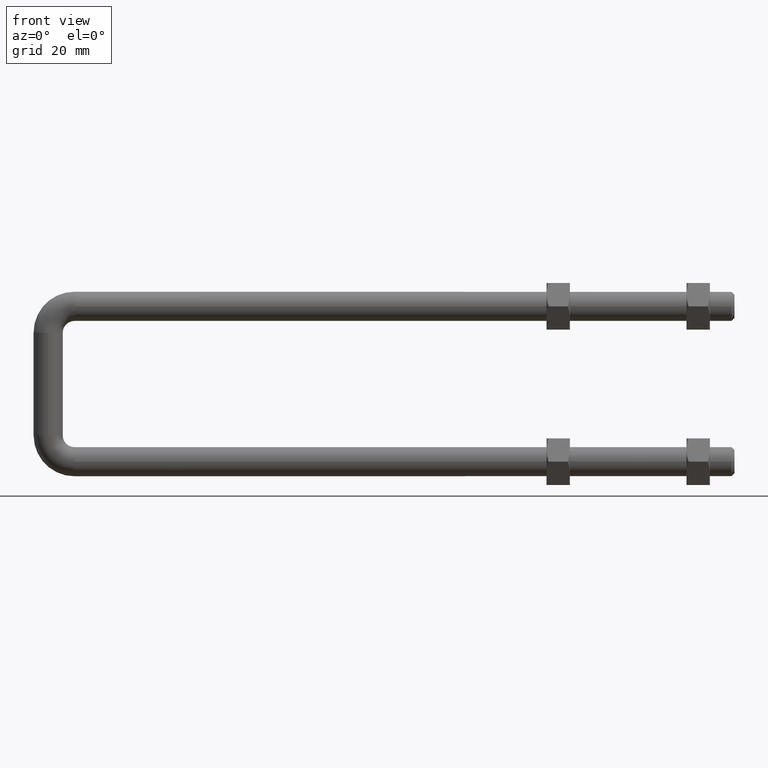
[diagram: clean part render]
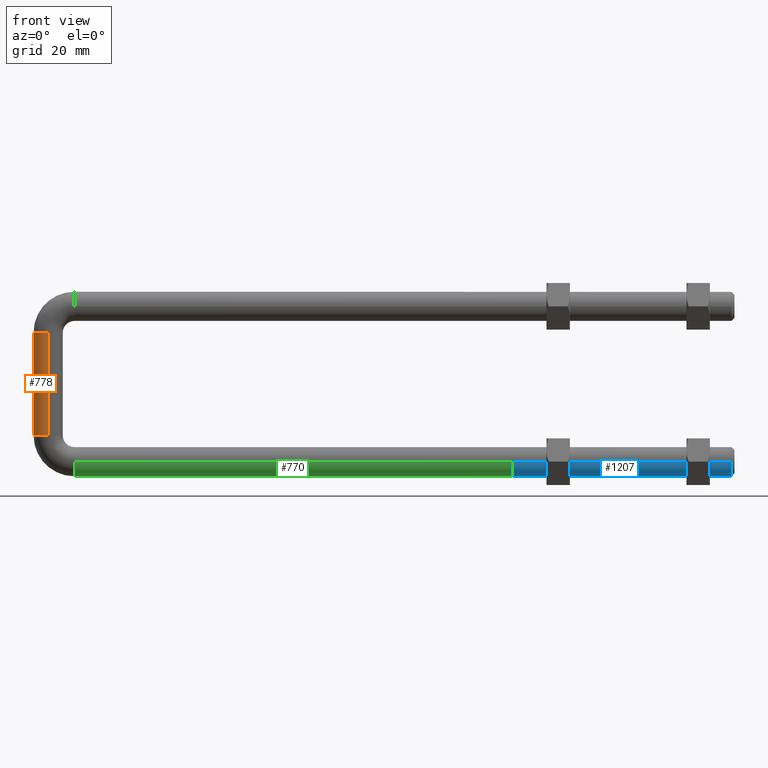
[diagram: same view with three faces highlighted in distinct colors, each labeled with its STEP entity id]
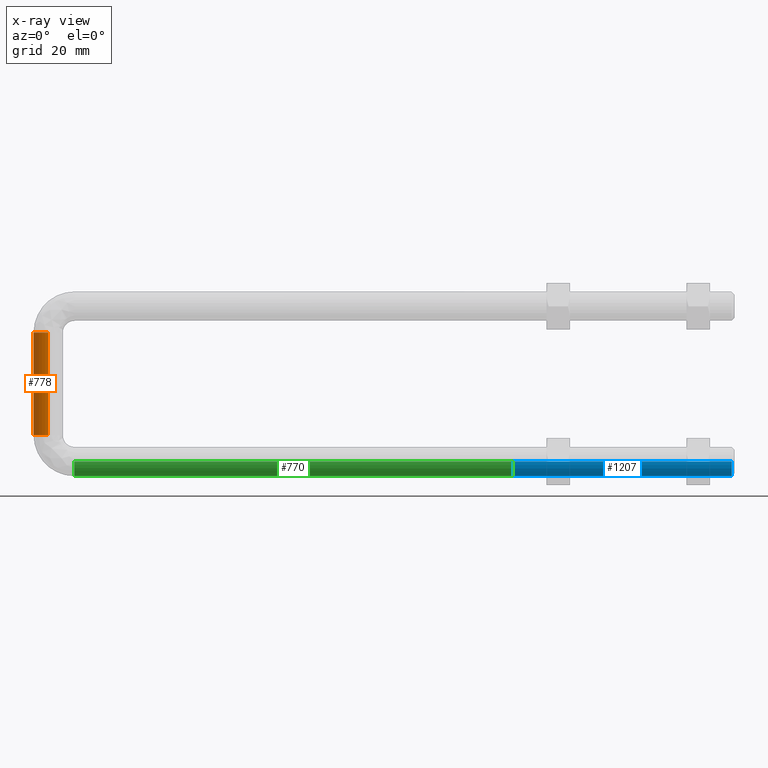
[diagram: x-ray of the same camera — body ghosted, the three highlighted faces saturated]
A machine part, front view with three faces highlighted in distinct colors.
The next image is the same camera in x-ray (body ghosted, the three faces saturated) — at least one of them is partly hidden behind the body in this view.
Their STEP definitions:

[orange] entity #778 — the highlighted cylindrical surface (edge-blend (fillet) strip) has radius 2.5 mm, axis along (0, 0, -1).
#7 = LINE ( 'NONE', #525, #967 ) ;
#21 = EDGE_CURVE ( 'NONE', #494, #1269, #923, .T. ) ;
#94 = FACE_OUTER_BOUND ( 'NONE', #1497, .T. ) ;
#111 = AXIS2_PLACEMENT_3D ( 'NONE', #614, #1482, #1296 ) ;
#139 = AXIS2_PLACEMENT_3D ( 'NONE', #195, #209, #183 ) ;
#183 = DIRECTION ( 'NONE',  ( 1.000000000000000000, 0.0000000000000000000, 0.0000000000000000000 ) ) ;
#195 = CARTESIAN_POINT ( 'NONE',  ( -85.00000000000015600, -22.10000000000000100, -2.311115933264683000E-030 ) ) ;
#209 = DIRECTION ( 'NONE',  ( 0.0000000000000000000, -1.000000000000000000, 0.0000000000000000000 ) ) ;
#225 = EDGE_CURVE ( 'NONE', #1269, #1194, #1354, .T. ) ;
#262 = VERTEX_POINT ( 'NONE', #1443 ) ;
#283 = CIRCLE ( 'NONE', #542, 2.500000000000008000 ) ;
#295 = DIRECTION ( 'NONE',  ( 0.0000000000000000000, -1.000000000000000000, 0.0000000000000000000 ) ) ;
#317 = CARTESIAN_POINT ( 'NONE',  ( -85.00000000000015600, -4.500000000000000900, -2.500000000000002200 ) ) ;
#321 = CARTESIAN_POINT ( 'NONE',  ( -87.49999999995600300, -22.10000000000000100, -1.269515858625958200E-010 ) ) ;
#326 = DIRECTION ( 'NONE',  ( 0.0000000000000000000, 0.0000000000000000000, -1.000000000000000000 ) ) ;
#412 = CARTESIAN_POINT ( 'NONE',  ( -85.00000000000015600, -4.500000000000000900, 2.500000000000008000 ) ) ;
#420 = VERTEX_POINT ( 'NONE', #1467 ) ;
#494 = VERTEX_POINT ( 'NONE', #839 ) ;
#508 = DIRECTION ( 'NONE',  ( 0.0000000000000000000, -1.000000000000000000, 0.0000000000000000000 ) ) ;
#525 = CARTESIAN_POINT ( 'NONE',  ( -85.00000000000015600, -4.500000000000000900, -2.500000000000008000 ) ) ;
#527 = VECTOR ( 'NONE', #781, 1000.000000000000000 ) ;
#535 = DIRECTION ( 'NONE',  ( 1.000000000000000000, 0.0000000000000000000, 0.0000000000000000000 ) ) ;
#542 = AXIS2_PLACEMENT_3D ( 'NONE', #1637, #699, #691 ) ;
#574 = CARTESIAN_POINT ( 'NONE',  ( -85.00000000000015600, -22.10000000000000100, -2.311115933264683000E-030 ) ) ;
#614 = CARTESIAN_POINT ( 'NONE',  ( -85.00000000000015600, -4.500000000000000900, -2.311115933264683000E-030 ) ) ;
#618 = CARTESIAN_POINT ( 'NONE',  ( -85.00000000000015600, -4.500000000000000900, -2.311115933264683000E-030 ) ) ;
#691 = DIRECTION ( 'NONE',  ( 0.0000000000000000000, 0.0000000000000000000, -1.000000000000000000 ) ) ;
#699 = DIRECTION ( 'NONE',  ( -0.0000000000000000000, 1.000000000000000000, -0.0000000000000000000 ) ) ;
#744 = EDGE_CURVE ( 'NONE', #865, #420, #1213, .T. ) ;
#778 = ADVANCED_FACE ( 'NONE', ( #94 ), #1184, .T. ) ;
#781 = DIRECTION ( 'NONE',  ( 0.0000000000000000000, -1.000000000000000000, 0.0000000000000000000 ) ) ;
#839 = CARTESIAN_POINT ( 'NONE',  ( -85.00000000000015600, -4.500000000000000900, 2.500000000000002200 ) ) ;
#865 = VERTEX_POINT ( 'NONE', #317 ) ;
#923 = LINE ( 'NONE', #412, #527 ) ;
#967 = VECTOR ( 'NONE', #976, 1000.000000000000000 ) ;
#976 = DIRECTION ( 'NONE',  ( 0.0000000000000000000, -1.000000000000000000, 0.0000000000000000000 ) ) ;
#988 = EDGE_CURVE ( 'NONE', #1194, #262, #1344, .T. ) ;
#1063 = AXIS2_PLACEMENT_3D ( 'NONE', #574, #508, #535 ) ;
#1184 = CYLINDRICAL_SURFACE ( 'NONE', #1505, 2.500000000000008000 ) ;
#1194 = VERTEX_POINT ( 'NONE', #321 ) ;
#1203 = EDGE_CURVE ( 'NONE', #420, #494, #283, .T. ) ;
#1213 = CIRCLE ( 'NONE', #111, 2.500000000000008000 ) ;
#1251 = EDGE_CURVE ( 'NONE', #865, #262, #7, .T. ) ;
#1252 = ORIENTED_EDGE ( 'NONE', *, *, #225, .F. ) ;
#1269 = VERTEX_POINT ( 'NONE', #1522 ) ;
#1296 = DIRECTION ( 'NONE',  ( 0.0000000000000000000, 0.0000000000000000000, -1.000000000000000000 ) ) ;
#1315 = ORIENTED_EDGE ( 'NONE', *, *, #744, .F. ) ;
#1332 = ORIENTED_EDGE ( 'NONE', *, *, #1251, .T. ) ;
#1344 = CIRCLE ( 'NONE', #1063, 2.500000000000002200 ) ;
#1354 = CIRCLE ( 'NONE', #139, 2.500000000000002200 ) ;
#1443 = CARTESIAN_POINT ( 'NONE',  ( -85.00000000000015600, -22.10000000000000100, -2.500000000000008000 ) ) ;
#1467 = CARTESIAN_POINT ( 'NONE',  ( -87.50000000000015600, -4.499999999999976000, 7.716141121096912600E-010 ) ) ;
#1482 = DIRECTION ( 'NONE',  ( -0.0000000000000000000, 1.000000000000000000, -0.0000000000000000000 ) ) ;
#1497 = EDGE_LOOP ( 'NONE', ( #1680, #1634, #1315, #1332, #1706, #1252 ) ) ;
#1505 = AXIS2_PLACEMENT_3D ( 'NONE', #618, #295, #326 ) ;
#1522 = CARTESIAN_POINT ( 'NONE',  ( -85.00000000000015600, -22.10000000000000100, 2.500000000000008000 ) ) ;
#1634 = ORIENTED_EDGE ( 'NONE', *, *, #1203, .F. ) ;
#1637 = CARTESIAN_POINT ( 'NONE',  ( -85.00000000000015600, -4.500000000000000900, -2.311115933264683000E-030 ) ) ;
#1680 = ORIENTED_EDGE ( 'NONE', *, *, #21, .F. ) ;
#1706 = ORIENTED_EDGE ( 'NONE', *, *, #988, .F. ) ;

[blue] entity #1207 — the highlighted cylindrical surface (edge-blend (fillet) strip) has radius 2.5 mm, axis along (-1, 0, 0).
#22 = DIRECTION ( 'NONE',  ( -1.000000000000000000, -0.0000000000000000000, -1.214306433183767400E-016 ) ) ;
#57 = CARTESIAN_POINT ( 'NONE',  ( -5.500000000000143900, -26.60000000000000500, -2.499999999999999100 ) ) ;
#93 = ORIENTED_EDGE ( 'NONE', *, *, #1093, .F. ) ;
#245 = AXIS2_PLACEMENT_3D ( 'NONE', #1456, #256, #344 ) ;
#256 = DIRECTION ( 'NONE',  ( -1.000000000000000000, 1.138085446107915500E-016, -1.214306433183764700E-016 ) ) ;
#344 = DIRECTION ( 'NONE',  ( 0.0000000000000000000, 0.0000000000000000000, 1.000000000000000000 ) ) ;
#372 = FACE_OUTER_BOUND ( 'NONE', #1431, .T. ) ;
#410 = CARTESIAN_POINT ( 'NONE',  ( -5.500000000000143900, -26.60000000000000100, -1.540743955509788700E-030 ) ) ;
#430 = CARTESIAN_POINT ( 'NONE',  ( -5.500000000000143900, -26.60000000000000500, 2.499999999999998700 ) ) ;
#433 = VECTOR ( 'NONE', #763, 1000.000000000000000 ) ;
#449 = EDGE_CURVE ( 'NONE', #1144, #539, #966, .T. ) ;
#465 = LINE ( 'NONE', #622, #1140 ) ;
#532 = ORIENTED_EDGE ( 'NONE', *, *, #765, .T. ) ;
#539 = VERTEX_POINT ( 'NONE', #57 ) ;
#622 = CARTESIAN_POINT ( 'NONE',  ( 32.49999999999986500, -26.60000000000000500, -2.499999999999995100 ) ) ;
#750 = DIRECTION ( 'NONE',  ( -1.000000000000000000, 1.138085446107915500E-016, -1.214306433183764700E-016 ) ) ;
#763 = DIRECTION ( 'NONE',  ( -1.000000000000000000, 1.138085446107915500E-016, -1.214306433183764700E-016 ) ) ;
#765 = EDGE_CURVE ( 'NONE', #1130, #1144, #969, .T. ) ;
#830 = CARTESIAN_POINT ( 'NONE',  ( 31.99999999999984700, -26.60000000000000500, -2.499999999999994200 ) ) ;
#863 = EDGE_CURVE ( 'NONE', #1303, #1130, #1623, .T. ) ;
#939 = CARTESIAN_POINT ( 'NONE',  ( 31.99999999999984700, -26.60000000000000500, 4.553649124439115500E-015 ) ) ;
#966 = CIRCLE ( 'NONE', #1389, 2.500000000000000000 ) ;
#969 = LINE ( 'NONE', #1151, #433 ) ;
#1030 = DIRECTION ( 'NONE',  ( 1.000000000000000000, -1.138085446107915500E-016, 1.214306433183764700E-016 ) ) ;
#1093 = EDGE_CURVE ( 'NONE', #1303, #539, #465, .T. ) ;
#1130 = VERTEX_POINT ( 'NONE', #1639 ) ;
#1140 = VECTOR ( 'NONE', #750, 1000.000000000000000 ) ;
#1144 = VERTEX_POINT ( 'NONE', #430 ) ;
#1151 = CARTESIAN_POINT ( 'NONE',  ( 32.49999999999986500, -26.60000000000000500, 2.500000000000004900 ) ) ;
#1164 = ORIENTED_EDGE ( 'NONE', *, *, #449, .T. ) ;
#1207 = ADVANCED_FACE ( 'NONE', ( #372 ), #1679, .T. ) ;
#1303 = VERTEX_POINT ( 'NONE', #830 ) ;
#1370 = ORIENTED_EDGE ( 'NONE', *, *, #863, .T. ) ;
#1389 = AXIS2_PLACEMENT_3D ( 'NONE', #410, #1030, #1662 ) ;
#1431 = EDGE_LOOP ( 'NONE', ( #93, #1370, #532, #1164 ) ) ;
#1456 = CARTESIAN_POINT ( 'NONE',  ( 32.49999999999986500, -26.60000000000000500, 4.614364446098306900E-015 ) ) ;
#1559 = DIRECTION ( 'NONE',  ( 0.0000000000000000000, 0.0000000000000000000, -1.000000000000000000 ) ) ;
#1623 = CIRCLE ( 'NONE', #1693, 2.500000000000000000 ) ;
#1639 = CARTESIAN_POINT ( 'NONE',  ( 31.99999999999984700, -26.60000000000000500, 2.500000000000003600 ) ) ;
#1662 = DIRECTION ( 'NONE',  ( 0.0000000000000000000, 0.0000000000000000000, -1.000000000000000000 ) ) ;
#1679 = CYLINDRICAL_SURFACE ( 'NONE', #245, 2.500000000000000000 ) ;
#1693 = AXIS2_PLACEMENT_3D ( 'NONE', #939, #22, #1559 ) ;

[green] entity #770 — the highlighted cylindrical surface (edge-blend (fillet) strip) has radius 2.5 mm, axis along (1, 0, 0).
#4 = DIRECTION ( 'NONE',  ( 1.000000000000000000, 0.0000000000000000000, 0.0000000000000000000 ) ) ;
#83 = AXIS2_PLACEMENT_3D ( 'NONE', #299, #390, #819 ) ;
#95 = EDGE_CURVE ( 'NONE', #1691, #1253, #881, .T. ) ;
#122 = VECTOR ( 'NONE', #4, 1000.000000000000000 ) ;
#220 = CARTESIAN_POINT ( 'NONE',  ( -80.50000000000015600, -26.60000000000000100, 2.500000000000004400 ) ) ;
#265 = VERTEX_POINT ( 'NONE', #455 ) ;
#299 = CARTESIAN_POINT ( 'NONE',  ( -80.50000000000015600, -26.60000000000000100, -2.311115933264683000E-030 ) ) ;
#311 = LINE ( 'NONE', #1139, #122 ) ;
#318 = CIRCLE ( 'NONE', #451, 2.500000000000004400 ) ;
#361 = ORIENTED_EDGE ( 'NONE', *, *, #1415, .T. ) ;
#390 = DIRECTION ( 'NONE',  ( -1.000000000000000000, -0.0000000000000000000, -0.0000000000000000000 ) ) ;
#393 = CARTESIAN_POINT ( 'NONE',  ( -5.500000000000143900, -26.60000000000000100, 2.499999999999998700 ) ) ;
#403 = ORIENTED_EDGE ( 'NONE', *, *, #95, .F. ) ;
#405 = VERTEX_POINT ( 'NONE', #393 ) ;
#451 = AXIS2_PLACEMENT_3D ( 'NONE', #453, #1088, #943 ) ;
#453 = CARTESIAN_POINT ( 'NONE',  ( -80.50000000000015600, -26.60000000000000100, -2.311115933264683000E-030 ) ) ;
#455 = CARTESIAN_POINT ( 'NONE',  ( -80.50000000000015600, -26.60000000000000100, -2.499999999999998700 ) ) ;
#479 = FACE_OUTER_BOUND ( 'NONE', #521, .T. ) ;
#521 = EDGE_LOOP ( 'NONE', ( #1257, #403, #1049, #361, #630 ) ) ;
#580 = LINE ( 'NONE', #220, #874 ) ;
#630 = ORIENTED_EDGE ( 'NONE', *, *, #1334, .F. ) ;
#670 = CARTESIAN_POINT ( 'NONE',  ( -80.50000000000015600, -26.60000000000000100, 2.499999999999998700 ) ) ;
#770 = ADVANCED_FACE ( 'NONE', ( #479 ), #1236, .T. ) ;
#772 = CARTESIAN_POINT ( 'NONE',  ( -5.500000000000143900, -26.60000000000000100, -1.540743955509788700E-030 ) ) ;
#819 = DIRECTION ( 'NONE',  ( 0.0000000000000000000, 1.387778780781443300E-015, -1.000000000000000000 ) ) ;
#869 = AXIS2_PLACEMENT_3D ( 'NONE', #772, #1173, #1170 ) ;
#874 = VECTOR ( 'NONE', #1178, 1000.000000000000000 ) ;
#880 = CARTESIAN_POINT ( 'NONE',  ( -80.50000000000015600, -26.60000000000000100, -2.311115933264683000E-030 ) ) ;
#881 = CIRCLE ( 'NONE', #83, 2.500000000000004400 ) ;
#917 = CARTESIAN_POINT ( 'NONE',  ( -5.500000000000143900, -26.60000000000000100, -2.500000000000000000 ) ) ;
#941 = CARTESIAN_POINT ( 'NONE',  ( -80.50000000000015600, -29.10000000000000100, 7.716139708514665200E-010 ) ) ;
#943 = DIRECTION ( 'NONE',  ( 0.0000000000000000000, 0.0000000000000000000, -1.000000000000000000 ) ) ;
#952 = EDGE_CURVE ( 'NONE', #1253, #405, #580, .T. ) ;
#1049 = ORIENTED_EDGE ( 'NONE', *, *, #1475, .F. ) ;
#1088 = DIRECTION ( 'NONE',  ( -1.000000000000000000, -0.0000000000000000000, -0.0000000000000000000 ) ) ;
#1139 = CARTESIAN_POINT ( 'NONE',  ( -80.50000000000015600, -26.60000000000000100, -2.500000000000004400 ) ) ;
#1155 = AXIS2_PLACEMENT_3D ( 'NONE', #880, #1366, #1382 ) ;
#1170 = DIRECTION ( 'NONE',  ( 0.0000000000000000000, 0.0000000000000000000, -1.000000000000000000 ) ) ;
#1173 = DIRECTION ( 'NONE',  ( 1.000000000000000000, -1.138085446107915500E-016, 1.214306433183764700E-016 ) ) ;
#1178 = DIRECTION ( 'NONE',  ( 1.000000000000000000, 0.0000000000000000000, 0.0000000000000000000 ) ) ;
#1236 = CYLINDRICAL_SURFACE ( 'NONE', #1155, 2.500000000000004400 ) ;
#1253 = VERTEX_POINT ( 'NONE', #670 ) ;
#1257 = ORIENTED_EDGE ( 'NONE', *, *, #952, .F. ) ;
#1334 = EDGE_CURVE ( 'NONE', #405, #1575, #1617, .T. ) ;
#1366 = DIRECTION ( 'NONE',  ( 1.000000000000000000, 0.0000000000000000000, 0.0000000000000000000 ) ) ;
#1382 = DIRECTION ( 'NONE',  ( 0.0000000000000000000, 0.0000000000000000000, -1.000000000000000000 ) ) ;
#1415 = EDGE_CURVE ( 'NONE', #265, #1575, #311, .T. ) ;
#1475 = EDGE_CURVE ( 'NONE', #265, #1691, #318, .T. ) ;
#1575 = VERTEX_POINT ( 'NONE', #917 ) ;
#1617 = CIRCLE ( 'NONE', #869, 2.500000000000000000 ) ;
#1691 = VERTEX_POINT ( 'NONE', #941 ) ;